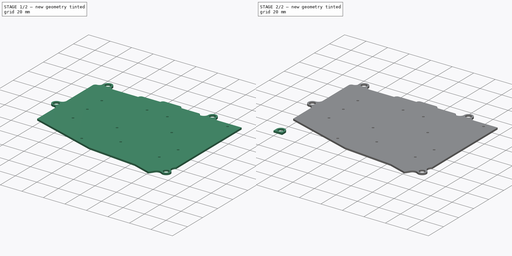
[diagram: build sequence overview — one tinted view per stage of 2, left to right]
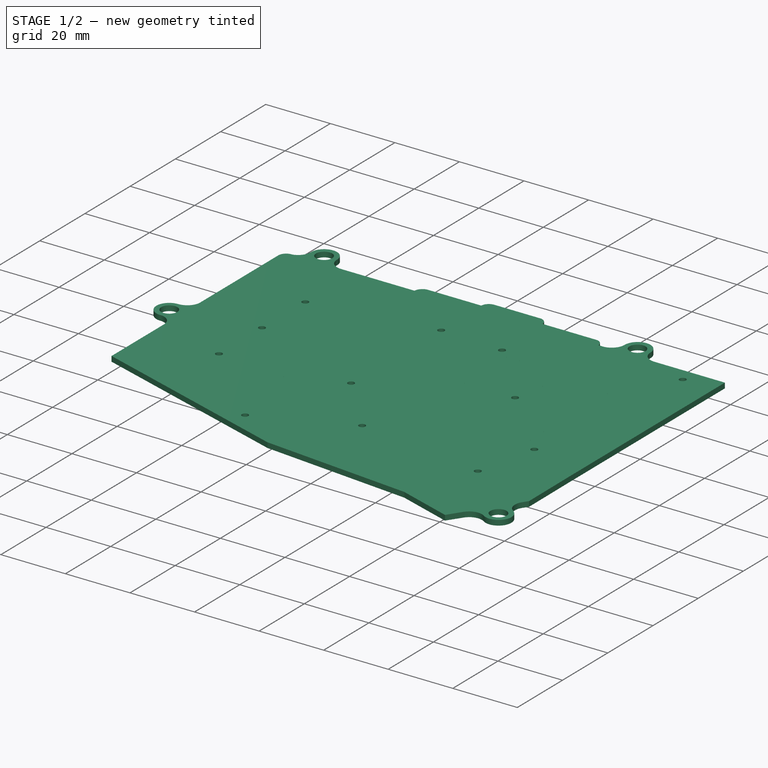
[diagram: stage 1 of 2 — iso view after this stage's code; geometry added in this stage tinted green]
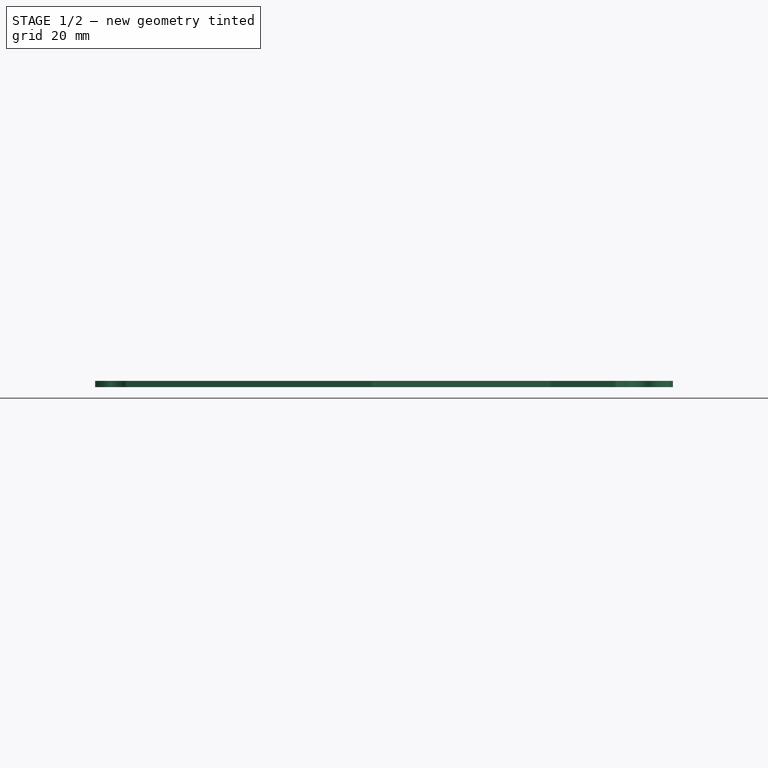
[diagram: stage 1 of 2 — front view after this stage's code; geometry added in this stage tinted green]
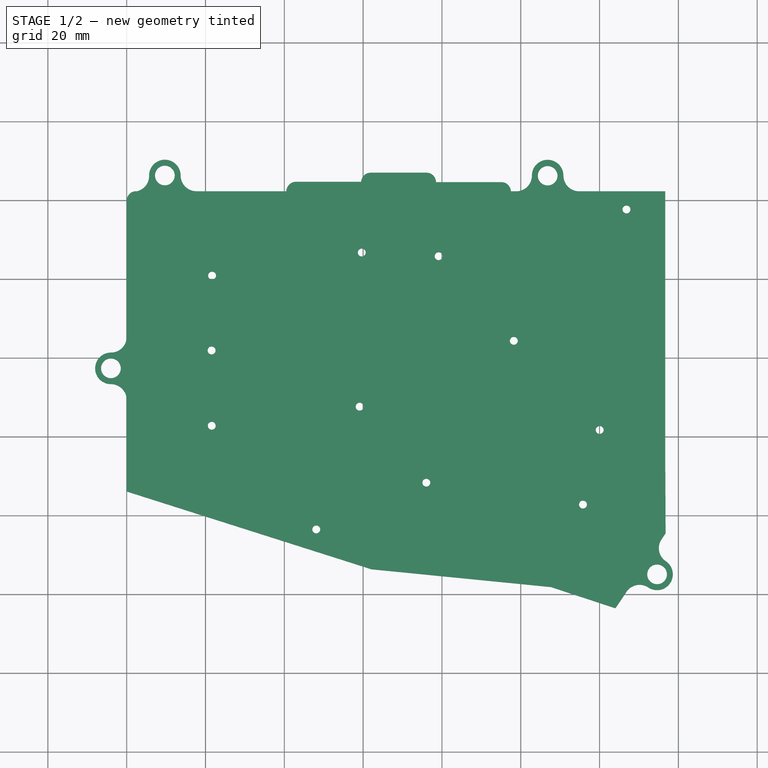
[diagram: stage 1 of 2 — top view after this stage's code; geometry added in this stage tinted green]
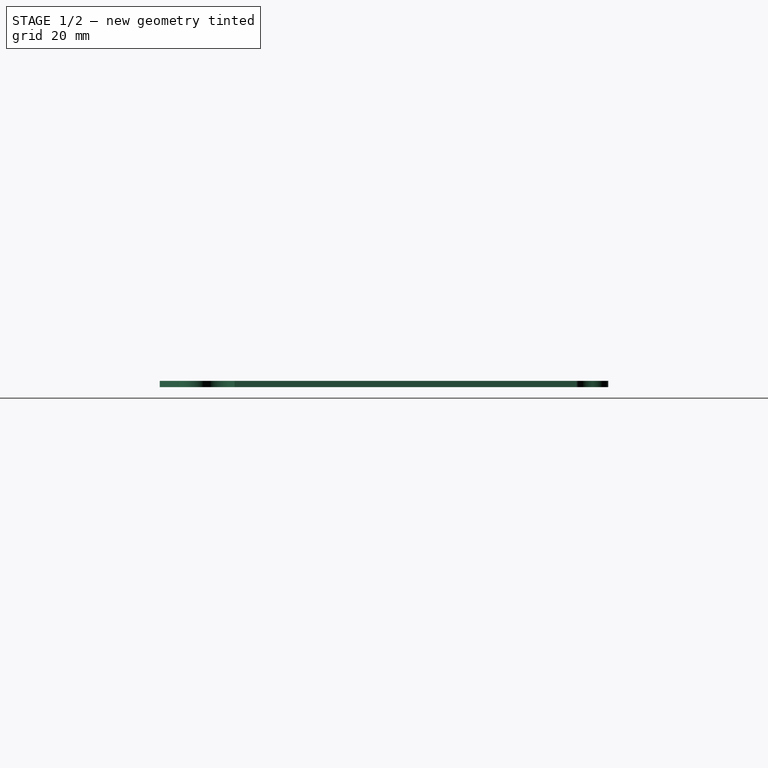
[diagram: stage 1 of 2 — right view after this stage's code; geometry added in this stage tinted green]
FCSTD DOCUMENT  (FreeCAD 0.20R29177 +426 (Git))
Label: case
License: All rights reserved
LicenseURL: http://en.wikipedia.org/wiki/All_rights_reserved
objects: Sketcher::SketchObject×3, PartDesign::Pad×3, PartDesign::Body×3, Part::Part2DObjectPython×2, Part::Feature×1
note: 15 computed .brp shape members not serialized (recipe doc carries the construction recipe); baked Part::Feature solids carry a one-line shape summary decoded from their .brp

FEATURE [Sketcher::SketchObject] Sketch
  FullyConstrained = false
  MapMode = 5
  Support = -> [XY_Plane]
  sketch-geometry (156):
    g0: LineSegment StartX=69.64 StartY=23.71 StartZ=0 EndX=83.64 EndY=23.71 EndZ=0
    g1: LineSegment StartX=83.64 StartY=23.71 StartZ=0 EndX=83.64 EndY=9.71 EndZ=0
    g2: LineSegment StartX=83.64 StartY=9.71 StartZ=0 EndX=69.64 EndY=9.71 EndZ=0
    g3: LineSegment StartX=69.64 StartY=9.71 StartZ=0 EndX=69.64 EndY=23.71 EndZ=0
    g4: LineSegment StartX=24 StartY=83.31 StartZ=0 EndX=24 EndY=97.31 EndZ=0
    g5: LineSegment StartX=24 StartY=97.31 StartZ=0 EndX=38 EndY=97.31 EndZ=0
    g6: LineSegment StartX=38 StartY=97.31 StartZ=0 EndX=38 EndY=83.31 EndZ=0
    g7: LineSegment StartX=38 StartY=83.31 StartZ=0 EndX=24 EndY=83.31 EndZ=0
    g8: LineSegment StartX=100 StartY=99.81 StartZ=0 EndX=114 EndY=99.81 EndZ=0
    g9: LineSegment StartX=114 StartY=99.81 StartZ=0 EndX=114 EndY=85.81 EndZ=0
    g10: LineSegment StartX=114 StartY=85.81 StartZ=0 EndX=100 EndY=85.81 EndZ=0
    g11: LineSegment StartX=100 StartY=85.81 StartZ=0 EndX=100 EndY=99.81 EndZ=0
    g12: LineSegment StartX=43 StartY=102.21 StartZ=0 EndX=57 EndY=102.21 EndZ=0
    g13: LineSegment StartX=57 StartY=102.21 StartZ=0 EndX=57 EndY=88.21 EndZ=0
    g14: LineSegment StartX=57 StartY=88.21 StartZ=0 EndX=43 EndY=88.21 EndZ=0
    g15: LineSegment StartX=43 StartY=88.21 StartZ=0 EndX=43 EndY=102.21 EndZ=0
    g16: LineSegment StartX=62 StartY=104.61 StartZ=0 EndX=76 EndY=104.61 EndZ=0
    g17: LineSegment StartX=76 StartY=104.61 StartZ=0 EndX=76 EndY=90.61 EndZ=0
    g18: LineSegment StartX=76 StartY=90.61 StartZ=0 EndX=62 EndY=90.61 EndZ=0
    g19: LineSegment StartX=62 StartY=90.61 StartZ=0 EndX=62 EndY=104.61 EndZ=0
    g20: LineSegment StartX=88.94 StartY=8.66 StartZ=0 EndX=102.463 EndY=5.03653 EndZ=0
    g21: LineSegment StartX=102.463 StartY=5.03653 StartZ=0 EndX=106.086 EndY=18.5595 EndZ=0
    g22: LineSegment StartX=106.086 StartY=18.5595 StartZ=0 EndX=92.5635 EndY=22.183 EndZ=0
    g23: LineSegment StartX=92.5635 StartY=22.183 StartZ=0 EndX=88.94 EndY=8.66 EndZ=0
    g24: LineSegment StartX=81 StartY=102.21 StartZ=0 EndX=95 EndY=102.21 EndZ=0
    g25: LineSegment StartX=95 StartY=102.21 StartZ=0 EndX=95 EndY=88.21 EndZ=0
    g26: LineSegment StartX=95 StartY=88.21 StartZ=0 EndX=81 EndY=88.21 EndZ=0
    g27: LineSegment StartX=81 StartY=88.21 StartZ=0 EndX=81 EndY=102.21 EndZ=0
    g28: LineSegment StartX=110.763 StartY=7.18653 StartZ=0 EndX=122.887 EndY=0.186533 EndZ=0
    g29: LineSegment StartX=122.887 StartY=0.186533 StartZ=0 EndX=129.887 EndY=12.3109 EndZ=0
    g30: LineSegment StartX=129.887 StartY=12.3109 StartZ=0 EndX=117.763 EndY=19.3109 EndZ=0
    g31: LineSegment StartX=117.763 StartY=19.3109 StartZ=0 EndX=110.763 EndY=7.18653 EndZ=0
    g32: LineSegment StartX=5 StartY=97.31 StartZ=0 EndX=19 EndY=97.31 EndZ=0
    g33: LineSegment StartX=19 StartY=97.31 StartZ=0 EndX=19 EndY=83.31 EndZ=0
    g34: LineSegment StartX=19 StartY=83.31 StartZ=0 EndX=5 EndY=83.31 EndZ=0
    g35: LineSegment StartX=5 StartY=83.31 StartZ=0 EndX=5 EndY=97.31 EndZ=0
    g36: LineSegment StartX=24 StartY=64.31 StartZ=0 EndX=24 EndY=78.31 EndZ=0
    g37: LineSegment StartX=24 StartY=78.31 StartZ=0 EndX=38 EndY=78.31 EndZ=0
    g38: LineSegment StartX=38 StartY=78.31 StartZ=0 EndX=38 EndY=64.31 EndZ=0
    g39: LineSegment StartX=38 StartY=64.31 StartZ=0 EndX=24 EndY=64.31 EndZ=0
    g40: LineSegment StartX=100 StartY=80.71 StartZ=0 EndX=114 EndY=80.71 EndZ=0
    g41: LineSegment StartX=114 StartY=80.71 StartZ=0 EndX=114 EndY=66.71 EndZ=0
    g42: LineSegment StartX=114 StartY=66.71 StartZ=0 EndX=100 EndY=66.71 EndZ=0
    g43: LineSegment StartX=100 StartY=66.71 StartZ=0 EndX=100 EndY=80.71 EndZ=0
    g44: LineSegment StartX=43 StartY=83.11 StartZ=0 EndX=57 EndY=83.11 EndZ=0
    g45: LineSegment StartX=57 StartY=83.11 StartZ=0 EndX=57 EndY=69.11 EndZ=0
    g46: LineSegment StartX=57 StartY=69.11 StartZ=0 EndX=43 EndY=69.11 EndZ=0
    g47: LineSegment StartX=43 StartY=69.11 StartZ=0 EndX=43 EndY=83.11 EndZ=0
    g48: LineSegment StartX=62 StartY=85.51 StartZ=0 EndX=76 EndY=85.51 EndZ=0
    g49: LineSegment StartX=76 StartY=85.51 StartZ=0 EndX=76 EndY=71.51 EndZ=0
    g50: LineSegment StartX=76 StartY=71.51 StartZ=0 EndX=62 EndY=71.51 EndZ=0
    g51: LineSegment StartX=62 StartY=71.51 StartZ=0 EndX=62 EndY=85.51 EndZ=0
    g52: LineSegment StartX=81 StartY=83.11 StartZ=0 EndX=95 EndY=83.11 EndZ=0
    g53: LineSegment StartX=95 StartY=83.11 StartZ=0 EndX=95 EndY=69.11 EndZ=0
    g54: LineSegment StartX=95 StartY=69.11 StartZ=0 EndX=81 EndY=69.11 EndZ=0
    g55: LineSegment StartX=81 StartY=69.11 StartZ=0 EndX=81 EndY=83.11 EndZ=0
    g56: LineSegment StartX=5 StartY=78.31 StartZ=0 EndX=19 EndY=78.31 EndZ=0
    g57: LineSegment StartX=19 StartY=78.31 StartZ=0 EndX=19 EndY=64.31 EndZ=0
    g58: LineSegment StartX=19 StartY=64.31 StartZ=0 EndX=5 EndY=64.31 EndZ=0
    g59: LineSegment StartX=5 StartY=64.31 StartZ=0 EndX=5 EndY=78.31 EndZ=0
    g60: LineSegment StartX=24 StartY=45.31 StartZ=0 EndX=24 EndY=59.31 EndZ=0
    g61: LineSegment StartX=24 StartY=59.31 StartZ=0 EndX=38 EndY=59.31 EndZ=0
    g62: LineSegment StartX=38 StartY=59.31 StartZ=0 EndX=38 EndY=45.31 EndZ=0
    g63: LineSegment StartX=38 StartY=45.31 StartZ=0 EndX=24 EndY=45.31 EndZ=0
    g64: LineSegment StartX=100 StartY=61.71 StartZ=0 EndX=114 EndY=61.71 EndZ=0
    g65: LineSegment StartX=114 StartY=61.71 StartZ=0 EndX=114 EndY=47.71 EndZ=0
    g66: LineSegment StartX=114 StartY=47.71 StartZ=0 EndX=100 EndY=47.71 EndZ=0
    g67: LineSegment StartX=100 StartY=47.71 StartZ=0 EndX=100 EndY=61.71 EndZ=0
    g68: LineSegment StartX=43 StartY=64.11 StartZ=0 EndX=57 EndY=64.11 EndZ=0
    g69: LineSegment StartX=57 StartY=64.11 StartZ=0 EndX=57 EndY=50.11 EndZ=0
    g70: LineSegment StartX=57 StartY=50.11 StartZ=0 EndX=43 EndY=50.11 EndZ=0
    g71: LineSegment StartX=43 StartY=50.11 StartZ=0 EndX=43 EndY=64.11 EndZ=0
    g72: LineSegment StartX=62 StartY=66.51 StartZ=0 EndX=76 EndY=66.51 EndZ=0
    g73: LineSegment StartX=76 StartY=66.51 StartZ=0 EndX=76 EndY=52.51 EndZ=0
    g74: LineSegment StartX=76 StartY=52.51 StartZ=0 EndX=62 EndY=52.51 EndZ=0
    g75: LineSegment StartX=62 StartY=52.51 StartZ=0 EndX=62 EndY=66.51 EndZ=0
    g76: LineSegment StartX=81 StartY=64.11 StartZ=0 EndX=95 EndY=64.11 EndZ=0
    g77: LineSegment StartX=95 StartY=64.11 StartZ=0 EndX=95 EndY=50.11 EndZ=0
    g78: LineSegment StartX=95 StartY=50.11 StartZ=0 EndX=81 EndY=50.11 EndZ=0
    g79: LineSegment StartX=81 StartY=50.11 StartZ=0 EndX=81 EndY=64.11 EndZ=0
    g80: LineSegment StartX=5 StartY=59.31 StartZ=0 EndX=19 EndY=59.31 EndZ=0
    g81: LineSegment StartX=19 StartY=59.31 StartZ=0 EndX=19 EndY=45.31 EndZ=0
    g82: LineSegment StartX=19 StartY=45.31 StartZ=0 EndX=5 EndY=45.31 EndZ=0
    g83: LineSegment StartX=5 StartY=45.31 StartZ=0 EndX=5 EndY=59.31 EndZ=0
    g84: LineSegment StartX=24 StartY=26.31 StartZ=0 EndX=24 EndY=40.31 EndZ=0
    g85: LineSegment StartX=24 StartY=40.31 StartZ=0 EndX=38 EndY=40.31 EndZ=0
    g86: LineSegment StartX=38 StartY=40.31 StartZ=0 EndX=38 EndY=26.31 EndZ=0
    g87: LineSegment StartX=38 StartY=26.31 StartZ=0 EndX=24 EndY=26.31 EndZ=0
    g88: LineSegment StartX=100 StartY=42.71 StartZ=0 EndX=114 EndY=42.71 EndZ=0
    g89: LineSegment StartX=114 StartY=42.71 StartZ=0 EndX=114 EndY=28.71 EndZ=0
    g90: LineSegment StartX=114 StartY=28.71 StartZ=0 EndX=100 EndY=28.71 EndZ=0
    g91: LineSegment StartX=100 StartY=28.71 StartZ=0 EndX=100 EndY=42.71 EndZ=0
    g92: LineSegment StartX=43 StartY=45.11 StartZ=0 EndX=57 EndY=45.11 EndZ=0
    g93: LineSegment StartX=57 StartY=45.11 StartZ=0 EndX=57 EndY=31.11 EndZ=0
    g94: LineSegment StartX=57 StartY=31.11 StartZ=0 EndX=43 EndY=31.11 EndZ=0
    g95: LineSegment StartX=43 StartY=31.11 StartZ=0 EndX=43 EndY=45.11 EndZ=0
    g96: LineSegment StartX=62 StartY=47.51 StartZ=0 EndX=76 EndY=47.51 EndZ=0
    g97: LineSegment StartX=76 StartY=47.51 StartZ=0 EndX=76 EndY=33.51 EndZ=0
    g98: LineSegment StartX=76 StartY=33.51 StartZ=0 EndX=62 EndY=33.51 EndZ=0
    g99: LineSegment StartX=62 StartY=33.51 StartZ=0 EndX=62 EndY=47.51 EndZ=0
    g100: LineSegment StartX=81 StartY=45.11 StartZ=0 EndX=95 EndY=45.11 EndZ=0
    g101: LineSegment StartX=95 StartY=45.11 StartZ=0 EndX=95 EndY=31.11 EndZ=0
    g102: LineSegment StartX=95 StartY=31.11 StartZ=0 EndX=81 EndY=31.11 EndZ=0
    g103: LineSegment StartX=81 StartY=31.11 StartZ=0 EndX=81 EndY=45.11 EndZ=0
    g104: LineSegment StartX=5 StartY=40.31 StartZ=0 EndX=19 EndY=40.31 EndZ=0
    g105: LineSegment StartX=19 StartY=40.31 StartZ=0 EndX=19 EndY=26.31 EndZ=0
    g106: LineSegment StartX=19 StartY=26.31 StartZ=0 EndX=5 EndY=26.31 EndZ=0
    g107: LineSegment StartX=5 StartY=26.31 StartZ=0 EndX=5 EndY=40.31 EndZ=0
    g108: LineSegment StartX=116 StartY=102.21 StartZ=0 EndX=116 EndY=33.55 EndZ=0
    g109: LineSegment StartX=116 StartY=33.55 StartZ=0 EndX=136.741 EndY=21.5802 EndZ=0
    g110: ArcOfCircle CenterX=42.998 CenterY=102.21 CenterZ=0 NormalX=0 NormalY=0 NormalZ=1 AngleXU=0 Radius=2.5 StartAngle=1.57 EndAngle=3.10158
    g111: ArcOfCircle CenterX=2.4 CenterY=99.91 CenterZ=0 NormalX=0 NormalY=0 NormalZ=1 AngleXU=0 Radius=2.4 StartAngle=1.5708 EndAngle=3.14159
    g112: LineSegment StartX=43 StartY=104.71 StartZ=0 EndX=59.5 EndY=104.71 EndZ=0
    g113: ArcOfCircle CenterX=61.8979 CenterY=104.61 CenterZ=0 NormalX=0 NormalY=0 NormalZ=1 AngleXU=0 Radius=2.4 StartAngle=1.5708 EndAngle=3.09991
    g114: LineSegment StartX=61.8979 StartY=107.01 StartZ=0 EndX=76.1 EndY=107.01 EndZ=0
    g115: ArcOfCircle CenterX=76.1 CenterY=104.61 CenterZ=0 NormalX=0 NormalY=0 NormalZ=1 AngleXU=0 Radius=2.4 StartAngle=4e-16 EndAngle=1.5708
    g116: LineSegment StartX=78.5 StartY=104.61 StartZ=0 EndX=95.1 EndY=104.61 EndZ=0
    g117: ArcOfCircle CenterX=95.1 CenterY=102.21 CenterZ=0 NormalX=0 NormalY=0 NormalZ=1 AngleXU=0 Radius=2.4 StartAngle=0 EndAngle=1.5708
    g118: LineSegment StartX=0 StartY=26.11 StartZ=0 EndX=62.14 EndY=6.36 EndZ=0
    g119: LineSegment StartX=62.14 StartY=6.36 StartZ=0 EndX=107.65 EndY=1.85 EndZ=0
    g120: LineSegment StartX=136.762 StartY=15.4981 StartZ=0 EndX=136.741 EndY=21.5802 EndZ=0
    g121: Circle CenterX=21.6769 CenterY=80.8947 CenterZ=0 NormalX=0 NormalY=0 NormalZ=1 AngleXU=0 Radius=1
    g122: Circle CenterX=21.5467 CenterY=61.8994 CenterZ=0 NormalX=0 NormalY=0 NormalZ=1 AngleXU=0 Radius=1
    g123: Circle CenterX=21.5877 CenterY=42.7891 CenterZ=0 NormalX=0 NormalY=0 NormalZ=1 AngleXU=0 Radius=1
    g124: Circle CenterX=59.1273 CenterY=47.6323 CenterZ=0 NormalX=0 NormalY=0 NormalZ=1 AngleXU=0 Radius=1
    g125: Circle CenterX=48.1132 CenterY=16.4695 CenterZ=0 NormalX=0 NormalY=0 NormalZ=1 AngleXU=0 Radius=1
    g126: Circle CenterX=76.0519 CenterY=28.3453 CenterZ=0 NormalX=0 NormalY=0 NormalZ=1 AngleXU=0 Radius=1
    g127: Circle CenterX=59.6586 CenterY=86.7615 CenterZ=0 NormalX=0 NormalY=0 NormalZ=1 AngleXU=0 Radius=1
    g128: Circle CenterX=79.1635 CenterY=85.8173 CenterZ=0 NormalX=0 NormalY=0 NormalZ=1 AngleXU=0 Radius=1
    g129: Circle CenterX=98.2457 CenterY=64.3391 CenterZ=0 NormalX=0 NormalY=0 NormalZ=1 AngleXU=0 Radius=1
    g130: Circle CenterX=115.792 CenterY=22.785 CenterZ=0 NormalX=0 NormalY=0 NormalZ=1 AngleXU=0 Radius=1
    g131: LineSegment StartX=97.5 StartY=102.21 StartZ=0 EndX=98.8324 EndY=102.21 EndZ=0
    g132: LineSegment StartX=114.832 StartY=102.21 StartZ=0 EndX=116 EndY=102.21 EndZ=0
    g133: Circle CenterX=106.832 CenterY=106.21 CenterZ=0 NormalX=0 NormalY=0 NormalZ=1 AngleXU=0 Radius=2.5
    g134: ArcOfCircle CenterX=106.832 CenterY=106.21 CenterZ=0 NormalX=0 NormalY=0 NormalZ=1 AngleXU=0 Radius=4 StartAngle=0 EndAngle=3.14159
    g135: ArcOfCircle CenterX=98.8324 CenterY=106.21 CenterZ=0 NormalX=0 NormalY=0 NormalZ=1 AngleXU=0 Radius=4 StartAngle=4.71239 EndAngle=6.28319
    g136: ArcOfCircle CenterX=114.832 CenterY=106.21 CenterZ=0 NormalX=0 NormalY=0 NormalZ=1 AngleXU=0 Radius=4 StartAngle=3.14159 EndAngle=4.71239
    g137: Circle CenterX=9.6909 CenterY=106.31 CenterZ=0 NormalX=0 NormalY=0 NormalZ=1 AngleXU=0 Radius=2.5
    g138: ArcOfCircle CenterX=9.6909 CenterY=106.31 CenterZ=0 NormalX=0 NormalY=0 NormalZ=1 AngleXU=0 Radius=4 StartAngle=1.2e-15 EndAngle=3.14159
    g139: ArcOfCircle CenterX=1.69254 CenterY=106.195 CenterZ=0 NormalX=0 NormalY=0 NormalZ=1 AngleXU=0 Radius=4 StartAngle=4.95242 EndAngle=6.31186
    g140: ArcOfCircle CenterX=17.6909 CenterY=106.309 CenterZ=0 NormalX=0 NormalY=0 NormalZ=1 AngleXU=0 Radius=4 StartAngle=3.14143 EndAngle=4.69435
    g141: LineSegment StartX=2.4 StartY=102.31 StartZ=0 EndX=2.64348 EndY=102.31 EndZ=0
    g142: LineSegment StartX=17.6187 StartY=102.31 StartZ=0 EndX=40.5 EndY=102.31 EndZ=0
    g143: Circle CenterX=-4 CenterY=57.3593 CenterZ=0 NormalX=0 NormalY=0 NormalZ=1 AngleXU=0 Radius=2.5
    g144: ArcOfCircle CenterX=-4 CenterY=57.3593 CenterZ=0 NormalX=0 NormalY=0 NormalZ=1 AngleXU=0 Radius=4 StartAngle=1.5708 EndAngle=4.71239
    g145: ArcOfCircle CenterX=-4 CenterY=49.3593 CenterZ=0 NormalX=0 NormalY=0 NormalZ=1 AngleXU=0 Radius=4 StartAngle=0 EndAngle=1.5708
    g146: ArcOfCircle CenterX=-4 CenterY=65.3593 CenterZ=0 NormalX=0 NormalY=0 NormalZ=1 AngleXU=0 Radius=4 StartAngle=4.71239 EndAngle=6.28319
    g147: LineSegment StartX=0 StartY=65.3593 StartZ=0 EndX=0 EndY=99.91 EndZ=0
    g148: LineSegment StartX=0 StartY=26.11 StartZ=0 EndX=0 EndY=49.3593 EndZ=0
    g149: LineSegment StartX=107.65 StartY=1.85 StartZ=0 EndX=124.04 EndY=-3.53 EndZ=0
    g150: Circle CenterX=134.601 CenterY=5.07198 CenterZ=0 NormalX=0 NormalY=0 NormalZ=1 AngleXU=0 Radius=2.5
    g151: ArcOfCircle CenterX=134.601 CenterY=5.07198 CenterZ=0 NormalX=0 NormalY=0 NormalZ=1 AngleXU=0 Radius=4 StartAngle=4.12376 EndAngle=7.26451
    g152: ArcOfCircle CenterX=139.048 CenterY=11.7219 CenterZ=0 NormalX=0 NormalY=0 NormalZ=1 AngleXU=0 Radius=4 StartAngle=2.55212 EndAngle=4.12292
    g153: ArcOfCircle CenterX=130.156 CenterY=-1.57977 CenterZ=0 NormalX=0 NormalY=0 NormalZ=1 AngleXU=0 Radius=4 StartAngle=0.981328 EndAngle=2.55212
    g154: LineSegment StartX=136.762 StartY=15.4981 StartZ=0 EndX=135.723 EndY=13.9456 EndZ=0
    g155: LineSegment StartX=126.831 StartY=0.643912 StartZ=0 EndX=124.04 EndY=-3.53 EndZ=0
  constraints (441):
    c: Coincident(g132,g108)
    c: Horizontal(g0)
    c: Coincident(g0,g1)
    c: Vertical(g1)
    c: Coincident(g1,g2)
    c: Horizontal(g2)
    c: Coincident(g2,g3)
    c: Vertical(g3)
    c: Coincident(g3,g0)
    c: Vertical(g4)
    c: Coincident(g4,g5)
    c: Horizontal(g5)
    c: Coincident(g5,g6)
    c: Vertical(g6)
    c: Coincident(g6,g7)
    c: Horizontal(g7)
    c: Coincident(g7,g4)
    c: Horizontal(g8)
    c: Coincident(g8,g9)
    c: Vertical(g9)
    c: Coincident(g9,g10)
    c: Horizontal(g10)
    c: Coincident(g10,g11)
    c: Vertical(g11)
    c: Coincident(g11,g8)
    c: Horizontal(g12)
    c: Coincident(g12,g13)
    c: Vertical(g13)
    c: Coincident(g13,g14)
    c: Horizontal(g14)
    c: Coincident(g14,g15)
    c: Vertical(g15)
    c: Coincident(g15,g12)
    c: Horizontal(g16)
    c: Coincident(g16,g17)
    c: Vertical(g17)
    c: Coincident(g17,g18)
    c: Horizontal(g18)
    c: Coincident(g18,g19)
    c: Vertical(g19)
    c: Coincident(g19,g16)
    c: Coincident(g20,g21)
    c: Coincident(g21,g22)
    c: Coincident(g22,g23)
    c: Coincident(g23,g20)
    c: Horizontal(g24)
    c: Coincident(g24,g25)
    c: Vertical(g25)
    c: Coincident(g25,g26)
    c: Horizontal(g26)
    c: Coincident(g26,g27)
    c: Vertical(g27)
    c: Coincident(g27,g24)
    c: Coincident(g28,g29)
    c: Coincident(g29,g30)
    c: Coincident(g30,g31)
    c: Coincident(g31,g28)
    c: Horizontal(g32)
    c: Coincident(g32,g33)
    c: Vertical(g33)
    c: Coincident(g33,g34)
    c: Horizontal(g34)
    c: Coincident(g34,g35)
    c: Vertical(g35)
    c: Coincident(g35,g32)
    c: DistanceY(g35,g35) = 14
    c: DistanceX(g32,g32) = 14
    c: DistanceX(g34,g4) = 19
    c: DistanceY(g32,g4) = 0
    c: DistanceX(g5,g5) = 14
    c: DistanceY(g4,g4) = 14
    c: DistanceY(g5,g12) = 4.9
    c: DistanceX(g6,g13) = 19
    c: DistanceY(g15,g15) = 14
    c: DistanceY(g12,g16) = 2.4
    c: DistanceX(g13,g17) = 19
    c: DistanceY(g19,g19) = 14
    c: DistanceY(g24,g16) = 2.4
    c: DistanceX(g17,g25) = 19
    c: DistanceY(g27,g27) = 14
    c: DistanceX(g12,g12) = 14
    c: DistanceX(g16,g16) = 14
    c: DistanceX(g24,g24) = 14
    c: DistanceY(g8,g24) = 2.4
    c: DistanceX(g25,g9) = 19
    c: DistanceY(g11,g11) = 14
    c: DistanceX(g8,g8) = 14
    c: Vertical(g36)
    c: Coincident(g36,g37)
    c: Horizontal(g37)
    c: Coincident(g37,g38)
    c: Vertical(g38)
    c: Coincident(g38,g39)
    c: Horizontal(g39)
    c: Coincident(g39,g36)
    c: Horizontal(g40)
    c: Coincident(g40,g41)
    c: Vertical(g41)
    c: Coincident(g41,g42)
    c: Horizontal(g42)
    c: Coincident(g42,g43)
    c: Vertical(g43)
    c: Coincident(g43,g40)
    c: Horizontal(g44)
    c: Coincident(g44,g45)
    c: Vertical(g45)
    c: Coincident(g45,g46)
    c: Horizontal(g46)
    c: Coincident(g46,g47)
    c: Vertical(g47)
    c: Coincident(g47,g44)
    c: Horizontal(g48)
    c: Coincident(g48,g49)
    c: Vertical(g49)
    c: Coincident(g49,g50)
    c: Horizontal(g50)
    c: Coincident(g50,g51)
    c: Vertical(g51)
    c: Coincident(g51,g48)
    c: Horizontal(g52)
    c: Coincident(g52,g53)
    c: Vertical(g53)
    c: Coincident(g53,g54)
    c: Horizontal(g54)
    c: Coincident(g54,g55)
    c: Vertical(g55)
    c: Coincident(g55,g52)
    c: Horizontal(g56)
    c: Coincident(g56,g57)
    c: Vertical(g57)
    c: Coincident(g57,g58)
    c: Horizontal(g58)
    c: Coincident(g58,g59)
    c: Vertical(g59)
    c: Coincident(g59,g56)
    c: DistanceY(g59,g59) = 14
    c: DistanceX(g56,g56) = 14
    c: DistanceX(g58,g36) = 19
    c: DistanceY(g56,g36) = 0
    c: DistanceX(g37,g37) = 14
    c: DistanceY(g36,g36) = 14
    c: DistanceY(g37,g44) = 4.8
    c: DistanceX(g38,g45) = 19
    c: DistanceY(g47,g47) = 14
    c: DistanceY(g44,g48) = 2.4
    c: DistanceX(g45,g49) = 19
    c: DistanceY(g51,g51) = 14
    c: DistanceY(g52,g48) = 2.4
    c: DistanceX(g49,g53) = 19
    c: DistanceY(g55,g55) = 14
    c: DistanceX(g44,g44) = 14
    c: DistanceX(g48,g48) = 14
    c: DistanceX(g52,g52) = 14
    c: DistanceY(g40,g52) = 2.4
    c: DistanceX(g53,g41) = 19
    c: DistanceY(g43,g43) = 14
    c: DistanceX(g40,g40) = 14
    c: Vertical(g60)
    c: Coincident(g60,g61)
    c: Horizontal(g61)
    c: Coincident(g61,g62)
    c: Vertical(g62)
    c: Coincident(g62,g63)
    c: Horizontal(g63)
    c: Coincident(g63,g60)
    c: Horizontal(g64)
    c: Coincident(g64,g65)
    c: Vertical(g65)
    c: Coincident(g65,g66)
    c: Horizontal(g66)
    c: Coincident(g66,g67)
    c: Vertical(g67)
    c: Coincident(g67,g64)
    c: Horizontal(g68)
    c: Coincident(g68,g69)
    c: Vertical(g69)
    c: Coincident(g69,g70)
    c: Horizontal(g70)
    c: Coincident(g70,g71)
    c: Vertical(g71)
    c: Coincident(g71,g68)
    c: Horizontal(g72)
    c: Coincident(g72,g73)
    c: Vertical(g73)
    c: Coincident(g73,g74)
    c: Horizontal(g74)
    c: Coincident(g74,g75)
    c: Vertical(g75)
    c: Coincident(g75,g72)
    c: Horizontal(g76)
    c: Coincident(g76,g77)
    c: Vertical(g77)
    c: Coincident(g77,g78)
    c: Horizontal(g78)
    c: Coincident(g78,g79)
    c: Vertical(g79)
    c: Coincident(g79,g76)
    c: Horizontal(g80)
    c: Coincident(g80,g81)
    c: Vertical(g81)
    c: Coincident(g81,g82)
    c: Horizontal(g82)
    c: Coincident(g82,g83)
    c: Vertical(g83)
    c: Coincident(g83,g80)
    c: DistanceY(g83,g83) = 14
    c: DistanceX(g80,g80) = 14
    c: DistanceX(g82,g60) = 19
    c: DistanceY(g80,g60) = 0
    c: DistanceX(g61,g61) = 14
    c: DistanceY(g60,g60) = 14
    c: DistanceY(g61,g68) = 4.8
    c: DistanceX(g62,g69) = 19
    c: DistanceY(g71,g71) = 14
    c: DistanceY(g68,g72) = 2.4
    c: DistanceX(g69,g73) = 19
    c: DistanceY(g75,g75) = 14
    c: DistanceY(g76,g72) = 2.4
    c: DistanceX(g73,g77) = 19
    c: DistanceY(g79,g79) = 14
    c: DistanceX(g68,g68) = 14
    c: DistanceX(g72,g72) = 14
    c: DistanceX(g76,g76) = 14
    c: DistanceY(g64,g76) = 2.4
    c: DistanceX(g77,g65) = 19
    c: DistanceY(g67,g67) = 14
    c: DistanceX(g64,g64) = 14
    c: Vertical(g84)
    c: Coincident(g84,g85)
    c: Horizontal(g85)
    c: Coincident(g85,g86)
    c: Vertical(g86)
    c: Coincident(g86,g87)
    c: Horizontal(g87)
    c: Coincident(g87,g84)
    c: Horizontal(g88)
    c: Coincident(g88,g89)
    c: Vertical(g89)
    c: Coincident(g89,g90)
    c: Horizontal(g90)
    c: Coincident(g90,g91)
    c: Vertical(g91)
    c: Coincident(g91,g88)
    c: Horizontal(g92)
    c: Coincident(g92,g93)
    c: Vertical(g93)
    c: Coincident(g93,g94)
    c: Horizontal(g94)
    c: Coincident(g94,g95)
    c: Vertical(g95)
    c: Coincident(g95,g92)
    c: Horizontal(g96)
    c: Coincident(g96,g97)
    c: Vertical(g97)
    c: Coincident(g97,g98)
    c: Horizontal(g98)
    c: Coincident(g98,g99)
    c: Vertical(g99)
    c: Coincident(g99,g96)
    c: Horizontal(g100)
    c: Coincident(g100,g101)
    c: Vertical(g101)
    c: Coincident(g101,g102)
    c: Horizontal(g102)
    c: Coincident(g102,g103)
    c: Vertical(g103)
    c: Coincident(g103,g100)
    c: Horizontal(g104)
    c: Coincident(g104,g105)
    c: Vertical(g105)
    c: Coincident(g105,g106)
    c: Horizontal(g106)
    c: Coincident(g106,g107)
    c: Vertical(g107)
    c: Coincident(g107,g104)
    c: DistanceY(g107,g107) = 14
    c: DistanceX(g104,g104) = 14
    c: DistanceX(g106,g84) = 19
    c: DistanceY(g104,g84) = 0
    c: DistanceX(g85,g85) = 14
    c: DistanceY(g84,g84) = 14
    c: DistanceY(g85,g92) = 4.8
    c: DistanceX(g86,g93) = 19
    c: DistanceY(g95,g95) = 14
    c: DistanceY(g92,g96) = 2.4
    c: DistanceX(g93,g97) = 19
    c: DistanceY(g99,g99) = 14
    c: DistanceY(g100,g96) = 2.4
    c: DistanceX(g97,g101) = 19
    c: DistanceY(g103,g103) = 14
    c: DistanceX(g92,g92) = 14
    c: DistanceX(g96,g96) = 14
    c: DistanceX(g100,g100) = 14
    c: DistanceY(g88,g100) = 2.4
    c: DistanceX(g101,g89) = 19
    c: DistanceY(g91,g91) = 14
    c: DistanceX(g88,g88) = 14
    c: DistanceY(g56,g32) = 19
    c: DistanceY(g80,g56) = 19
    c: DistanceX(g56,g34) = 0
    c: DistanceX(g58,g80) = 0
    c: DistanceX(g82,g104) = 0
    c: DistanceY(g104,g80) = 19
    c: DistanceX(g8,g132) = 2
    c: DistanceX(g0,g0) = 14
    c: DistanceY(g3,g3) = 14
    c: Angle(g23,g1) = 0.261799
    c: Distance(g22) = 14
    c: Distance(g23) = 14
    c: Distance(g20) = 14
    c: Distance(g21) = 14
    c: Distance(g30) = 14
    c: Distance(g31) = 14
    c: Distance(g29) = 14
    c: Distance(g28) = 14
    c: Angle(g31,g1) = 0.523599
    c: Vertical(g108)
    c: Coincident(g109,g108)
    c: DistanceX(g142,g12) = 2.5
    c: Coincident(g110,g112)
    c: Coincident(g110,g142)
    c: Radius(g110) = 2.5
    c: DistanceX(g112,g12) = 0
    c: Tangent(g147,g111) = 1.5708
    c: Tangent(g141,g111) = 1.5708
    c: Radius(g111) = 2.4
    c: DistanceX(g147,g32) = 5
    c: DistanceY(g32,g141) = 5
    c: Horizontal(g112)
    c: Distance(g12,g112) = 2.5
    c: DistanceX(g142,g112) = 19
    c: Tangent(g114,g113) = 1.5708
    c: Coincident(g112,g113) = 1.5708
    c: DistanceY(g16,g114) = 2.4
    c: Radius(g113) = 2.4
    c: Horizontal(g114)
    c: Tangent(g114,g115) = 1.5708
    c: Coincident(g116,g115) = -1.5708
    c: DistanceX(g112,g116) = 19
    c: DistanceY(g24,g116) = 2.4
    c: Radius(g115) = 2.4
    c: Horizontal(g116)
    c: Tangent(g116,g117) = 1.5708
    c: Coincident(g131,g117)
    c: DistanceX(g115,g131) = 19
    c: Radius(g117) = 2.4
    c: DistanceY(g8,g131) = 2.4
    c: DistanceX(g-2,g111) = 0
    c: DistanceY(g148,g141) = 76.2
    c: Coincident(g118,g148)
    c: Diameter(g121) = 2
    c: Diameter(g122) = 2
    c: Diameter(g123) = 2
    c: Diameter(g124) = 2
    c: Diameter(g125) = 2
    c: Diameter(g126) = 2
    c: Diameter(g127) = 2
    c: Diameter(g128) = 2
    c: Diameter(g129) = 2
    c: Diameter(g130) = 2
    c: Horizontal(g131)
    c: Horizontal(g132)
    c: Diameter(g133) = 5
    c: Radius(g134) = 4
    c: DistanceY(g133,g134) = 0
    c: DistanceY(g133,g134) = 0
    c: Radius(g135) = 4
    c: Coincident(g135,g134)
    c: Coincident(g131,g135)
    c: Coincident(g134,g136)
    c: Coincident(g132,g136)
    c: Radius(g136) = 4
    c: DistanceY(g132,g131) = 0
    c: Coincident(g133,g134)
    c: DistanceY(g131,g134) = 4
    c: DistanceX(g131,g134) = 4
    c: DistanceX(g134,g132) = 4
    c: Diameter(g137) = 5
    c: Radius(g138) = 4
    c: DistanceY(g137,g138) = 0
    c: DistanceY(g137,g138) = 0
    c: Radius(g139) = 4
    c: Coincident(g139,g138)
    c: Coincident(g138,g140)
    c: Radius(g140) = 4
    c: Coincident(g137,g138)
    c: Horizontal(g141)
    c: Horizontal(g142)
    c: Coincident(g141,g139)
    c: Coincident(g140,g142)
    c: DistanceY(g139,g140) = 0
    c: DistanceY(g139,g138) = 4
    c: Diameter(g143) = 5
    c: Radius(g144) = 4
    c: Radius(g145) = 4
    c: Coincident(g145,g144)
    c: Coincident(g144,g146)
    c: Radius(g146) = 4
    c: Coincident(g143,g144)
    c: DistanceX(g143,g144) = 0
    c: DistanceX(g143,g144) = 0
    c: Vertical(g147)
    c: Vertical(g148)
    c: Coincident(g145,g148)
    c: Coincident(g146,g147)
    c: DistanceX(g146,g145) = 0
    c: DistanceX(g144,g145) = 4
    c: DistanceY(g145,g144) = 4
    c: DistanceY(g144,g146) = 4
    c: Coincident(g109,g120)
    c: Coincident(g119,g118)
    c: Coincident(g120,g154)
    c: Coincident(g149,g155)
    c: Coincident(g119,g149)
    c: DistanceX(g98,g0) = 7.64
    c: DistanceY(g0,g98) = 9.8
    c: DistanceX(g1,g20) = 5.3
    c: Perpendicular(g22,g23)
    c: DistanceY(g20,g1) = 1.05
    c: DistanceX(g20,g28) = 8.3
    c: DistanceY(g20,g28) = 2.15
    c: Perpendicular(g31,g30)
    c: Diameter(g150) = 5
    c: Radius(g151) = 4
    c: Radius(g152) = 4
    c: Coincident(g152,g151)
    c: Coincident(g151,g153)
    c: Radius(g153) = 4
    c: Coincident(g150,g151)
    c: Coincident(g153,g155)
    c: Coincident(g152,g154)
    c: DistanceY(g118,g118) = 19.75
    c: DistanceX(g118,g118) = 62.14
    c: DistanceY(g119,g119) = 4.51
    c: DistanceX(g119,g119) = 45.51
    c: DistanceY(g149,g149) = 5.38
    c: DistanceX(g149,g149) = 16.39
    c: DistanceY(g108,g108) = 68.66
    c: DistanceY(g-1,g118) = 26.11
    c: Parallel(g154,g155)
    c: Distance(g150,g154) = 4
FEATURE [PartDesign::Pad] Pad
  Direction = (0,0,1)
  Length = 1.6
  Length2 = 10
  Profile = -> Sketch
  ReferenceAxis = -> Sketch [N_Axis]
  Type = 0
FEATURE [PartDesign::Body] Body003
  Group = -> [Sketch003,Pad003]
  Origin = -> Origin003
  Placement = pos=(-61.4052,-53.0722,0) rot=(0,0,1;0rad)
  Tip = -> Pad003
FEATURE [Part::Feature] Solid  label="shield 1"
  Placement = pos=(-137.597,101.61,-1.6) rot=(0,0,1;0rad)
  shape: bbox 136.7 x 110.6 x 1.6 mm, 274 faces (baked)
FEATURE [Sketcher::SketchObject] Sketch004
  FullyConstrained = false
  MapMode = 5
  Support = -> [XY_Plane005]
  sketch-geometry (50):
    g0: LineSegment StartX=136.676 StartY=102.283 StartZ=0 EndX=136.676 EndY=33.6233 EndZ=0
    g1: LineSegment StartX=136.676 StartY=33.6233 StartZ=0 EndX=136.741 EndY=21.5802 EndZ=0
    g2: ArcOfCircle CenterX=42.9978 CenterY=102.21 CenterZ=0 NormalX=0 NormalY=0 NormalZ=1 AngleXU=0 Radius=2.5 StartAngle=1.56994 EndAngle=3.10159
    g3: ArcOfCircle CenterX=2.4 CenterY=99.91 CenterZ=0 NormalX=0 NormalY=0 NormalZ=1 AngleXU=0 Radius=2.4 StartAngle=1.5708 EndAngle=3.14159
    g4: LineSegment StartX=43 StartY=104.71 StartZ=0 EndX=59.4998 EndY=104.71 EndZ=0
    g5: ArcOfCircle CenterX=61.8978 CenterY=104.61 CenterZ=0 NormalX=0 NormalY=0 NormalZ=1 AngleXU=0 Radius=2.4 StartAngle=1.5708 EndAngle=3.10003
    g6: LineSegment StartX=61.8978 StartY=107.01 StartZ=0 EndX=76.0998 EndY=107.01 EndZ=0
    g7: ArcOfCircle CenterX=76.0998 CenterY=104.61 CenterZ=0 NormalX=0 NormalY=0 NormalZ=1 AngleXU=0 Radius=2.4 StartAngle=0.00215354 EndAngle=1.5708
    g8: LineSegment StartX=78.4998 StartY=104.615 StartZ=0 EndX=95.1008 EndY=104.615 EndZ=0
    g9: ArcOfCircle CenterX=95.1008 CenterY=102.215 CenterZ=0 NormalX=0 NormalY=0 NormalZ=1 AngleXU=0 Radius=2.4 StartAngle=0.0282794 EndAngle=1.5708
    g10: LineSegment StartX=0 StartY=26.11 StartZ=0 EndX=62.14 EndY=6.36 EndZ=0
    g11: LineSegment StartX=62.14 StartY=6.36 StartZ=0 EndX=107.65 EndY=1.85 EndZ=0
    g12: LineSegment StartX=136.762 StartY=15.4981 StartZ=0 EndX=136.741 EndY=21.5802 EndZ=0
    g13: Circle CenterX=21.6769 CenterY=80.8947 CenterZ=0 NormalX=0 NormalY=0 NormalZ=1 AngleXU=0 Radius=1
    g14: Circle CenterX=21.5467 CenterY=61.8994 CenterZ=0 NormalX=0 NormalY=0 NormalZ=1 AngleXU=0 Radius=1
    g15: Circle CenterX=21.5877 CenterY=42.7891 CenterZ=0 NormalX=0 NormalY=0 NormalZ=1 AngleXU=0 Radius=1
    g16: Circle CenterX=59.1273 CenterY=47.6323 CenterZ=0 NormalX=0 NormalY=0 NormalZ=1 AngleXU=0 Radius=1
    g17: Circle CenterX=48.1132 CenterY=16.4695 CenterZ=0 NormalX=0 NormalY=0 NormalZ=1 AngleXU=0 Radius=1
    g18: Circle CenterX=76.0519 CenterY=28.3453 CenterZ=0 NormalX=0 NormalY=0 NormalZ=1 AngleXU=0 Radius=1
    g19: Circle CenterX=59.6586 CenterY=86.7615 CenterZ=0 NormalX=0 NormalY=0 NormalZ=1 AngleXU=0 Radius=1
    g20: Circle CenterX=79.1635 CenterY=85.8173 CenterZ=0 NormalX=0 NormalY=0 NormalZ=1 AngleXU=0 Radius=1
    g21: Circle CenterX=98.2457 CenterY=64.3391 CenterZ=0 NormalX=0 NormalY=0 NormalZ=1 AngleXU=0 Radius=1
    g22: Circle CenterX=115.792 CenterY=22.785 CenterZ=0 NormalX=0 NormalY=0 NormalZ=1 AngleXU=0 Radius=1
    g23: LineSegment StartX=97.4998 StartY=102.283 StartZ=0 EndX=98.8324 EndY=102.283 EndZ=0
    g24: LineSegment StartX=114.832 StartY=102.283 StartZ=0 EndX=136.676 EndY=102.283 EndZ=0
    g25: Circle CenterX=106.832 CenterY=106.283 CenterZ=0 NormalX=0 NormalY=0 NormalZ=1 AngleXU=0 Radius=2.5
    g26: ArcOfCircle CenterX=106.832 CenterY=106.283 CenterZ=0 NormalX=0 NormalY=0 NormalZ=1 AngleXU=0 Radius=4 StartAngle=0 EndAngle=3.14159
    g27: ArcOfCircle CenterX=98.8324 CenterY=106.283 CenterZ=0 NormalX=0 NormalY=0 NormalZ=1 AngleXU=0 Radius=4 StartAngle=4.71239 EndAngle=6.28319
    g28: ArcOfCircle CenterX=114.832 CenterY=106.283 CenterZ=0 NormalX=0 NormalY=0 NormalZ=1 AngleXU=0 Radius=4 StartAngle=3.14159 EndAngle=4.71239
    g29: Circle CenterX=9.6909 CenterY=106.31 CenterZ=0 NormalX=0 NormalY=0 NormalZ=1 AngleXU=0 Radius=2.5
    g30: ArcOfCircle CenterX=9.6909 CenterY=106.31 CenterZ=0 NormalX=0 NormalY=0 NormalZ=1 AngleXU=0 Radius=4 StartAngle=1.2e-15 EndAngle=3.14159
    g31: ArcOfCircle CenterX=1.69254 CenterY=106.195 CenterZ=0 NormalX=0 NormalY=0 NormalZ=1 AngleXU=0 Radius=4 StartAngle=4.95242 EndAngle=6.31186
    g32: ArcOfCircle CenterX=17.6909 CenterY=106.309 CenterZ=0 NormalX=0 NormalY=0 NormalZ=1 AngleXU=0 Radius=4 StartAngle=3.14143 EndAngle=4.69435
    g33: LineSegment StartX=2.4 StartY=102.31 StartZ=0 EndX=2.64348 EndY=102.31 EndZ=0
    g34: LineSegment StartX=17.6187 StartY=102.31 StartZ=0 EndX=40.4998 EndY=102.31 EndZ=0
    g35: Circle CenterX=-4 CenterY=57.3593 CenterZ=0 NormalX=0 NormalY=0 NormalZ=1 AngleXU=0 Radius=2.5
    g36: ArcOfCircle CenterX=-4 CenterY=57.3593 CenterZ=0 NormalX=0 NormalY=0 NormalZ=1 AngleXU=0 Radius=4 StartAngle=1.5708 EndAngle=4.71239
    g37: ArcOfCircle CenterX=-4 CenterY=49.3593 CenterZ=0 NormalX=0 NormalY=0 NormalZ=1 AngleXU=0 Radius=4 StartAngle=0 EndAngle=1.5708
    g38: ArcOfCircle CenterX=-4 CenterY=65.3593 CenterZ=0 NormalX=0 NormalY=0 NormalZ=1 AngleXU=0 Radius=4 StartAngle=4.71239 EndAngle=6.28319
    g39: LineSegment StartX=0 StartY=65.3593 StartZ=0 EndX=0 EndY=99.91 EndZ=0
    g40: LineSegment StartX=0 StartY=26.11 StartZ=0 EndX=0 EndY=49.3593 EndZ=0
    g41: LineSegment StartX=107.65 StartY=1.85 StartZ=0 EndX=124.04 EndY=-3.53 EndZ=0
    g42: Circle CenterX=134.601 CenterY=5.07198 CenterZ=0 NormalX=0 NormalY=0 NormalZ=1 AngleXU=0 Radius=2.5
    g43: ArcOfCircle CenterX=134.601 CenterY=5.07198 CenterZ=0 NormalX=0 NormalY=0 NormalZ=1 AngleXU=0 Radius=4 StartAngle=4.12376 EndAngle=7.26451
    g44: ArcOfCircle CenterX=139.048 CenterY=11.7219 CenterZ=0 NormalX=0 NormalY=0 NormalZ=1 AngleXU=0 Radius=4 StartAngle=2.55212 EndAngle=4.12292
    g45: ArcOfCircle CenterX=130.156 CenterY=-1.57977 CenterZ=0 NormalX=0 NormalY=0 NormalZ=1 AngleXU=0 Radius=4 StartAngle=0.981328 EndAngle=2.55212
    g46: LineSegment StartX=136.762 StartY=15.4981 StartZ=0 EndX=135.723 EndY=13.9456 EndZ=0
    g47: LineSegment StartX=126.831 StartY=0.643912 StartZ=0 EndX=124.04 EndY=-3.53 EndZ=0
    g48: Circle CenterX=120.043 CenterY=41.7175 CenterZ=0 NormalX=0 NormalY=0 NormalZ=1 AngleXU=0 Radius=1
    g49: Circle CenterX=126.832 CenterY=97.6877 CenterZ=0 NormalX=0 NormalY=0 NormalZ=1 AngleXU=0 Radius=1
  constraints (112):
    c: Coincident(g24,g0)
    c: Vertical(g0)
    c: Coincident(g1,g0)
    c: Coincident(g2,g4)
    c: Coincident(g2,g34)
    c: Radius(g2) = 2.5
    c: Tangent(g39,g3) = 1.5708
    c: Tangent(g33,g3) = 1.5708
    c: Radius(g3) = 2.4
    c: Horizontal(g4)
    c: DistanceX(g34,g4) = 19
    c: Tangent(g6,g5) = 1.5708
    c: Coincident(g4,g5) = 1.5708
    c: Radius(g5) = 2.4
    c: Horizontal(g6)
    c: Tangent(g6,g7) = 1.5708
    c: Coincident(g8,g7) = -1.5708
    c: DistanceX(g4,g8) = 19
    c: Radius(g7) = 2.4
    c: Horizontal(g8)
    c: Tangent(g8,g9) = 1.5708
    c: Coincident(g23,g9)
    c: DistanceX(g7,g23) = 19
    c: Radius(g9) = 2.4
    c: DistanceX(g-2,g3) = 0
    c: DistanceY(g40,g33) = 76.2
    c: Coincident(g10,g40)
    c: Diameter(g13) = 2
    c: Diameter(g14) = 2
    c: Diameter(g15) = 2
    c: Diameter(g16) = 2
    c: Diameter(g17) = 2
    c: Diameter(g18) = 2
    c: Diameter(g19) = 2
    c: Diameter(g20) = 2
    c: Diameter(g21) = 2
    c: Diameter(g22) = 2
    c: Horizontal(g23)
    c: Horizontal(g24)
    c: Diameter(g25) = 5
    c: Radius(g26) = 4
    c: DistanceY(g25,g26) = 0
    c: DistanceY(g25,g26) = 0
    c: Radius(g27) = 4
    c: Coincident(g27,g26)
    c: Coincident(g23,g27)
    c: Coincident(g26,g28)
    c: Coincident(g24,g28)
    c: Radius(g28) = 4
    c: DistanceY(g24,g23) = 0
    c: Coincident(g25,g26)
    c: DistanceY(g23,g26) = 4
    c: DistanceX(g23,g26) = 4
    c: DistanceX(g26,g24) = 4
    c: Diameter(g29) = 5
    c: Radius(g30) = 4
    c: DistanceY(g29,g30) = 0
    c: DistanceY(g29,g30) = 0
    c: Radius(g31) = 4
    c: Coincident(g31,g30)
    c: Coincident(g30,g32)
    c: Radius(g32) = 4
    c: Coincident(g29,g30)
    c: Horizontal(g33)
    c: Horizontal(g34)
    c: Coincident(g33,g31)
    c: Coincident(g32,g34)
    c: DistanceY(g31,g32) = 0
    c: DistanceY(g31,g30) = 4
    c: Diameter(g35) = 5
    c: Radius(g36) = 4
    c: Radius(g37) = 4
    c: Coincident(g37,g36)
    c: Coincident(g36,g38)
    c: Radius(g38) = 4
    c: Coincident(g35,g36)
    c: DistanceX(g35,g36) = 0
    c: DistanceX(g35,g36) = 0
    c: Vertical(g39)
    c: Vertical(g40)
    c: Coincident(g37,g40)
    c: Coincident(g38,g39)
    c: DistanceX(g38,g37) = 0
    c: DistanceX(g36,g37) = 4
    c: DistanceY(g37,g36) = 4
    c: DistanceY(g36,g38) = 4
    c: Coincident(g1,g12)
    c: Coincident(g11,g10)
    c: Coincident(g12,g46)
    c: Coincident(g41,g47)
    c: Coincident(g11,g41)
    c: Diameter(g42) = 5
    c: Radius(g43) = 4
    c: Radius(g44) = 4
    c: Coincident(g44,g43)
    c: Coincident(g43,g45)
    c: Radius(g45) = 4
    c: Coincident(g42,g43)
    c: Coincident(g45,g47)
    c: Coincident(g44,g46)
    c: DistanceY(g10,g10) = 19.75
    c: DistanceX(g10,g10) = 62.14
    c: DistanceY(g11,g11) = 4.51
    c: DistanceX(g11,g11) = 45.51
    c: DistanceY(g41,g41) = 5.38
    c: DistanceX(g41,g41) = 16.39
    c: DistanceY(g0,g0) = 68.66
    c: DistanceY(g-1,g10) = 26.11
    c: Parallel(g46,g47)
    c: Distance(g42,g46) = 4
    c: Diameter(g48) = 2
    c: Diameter(g49) = 2
FEATURE [PartDesign::Pad] Pad004
  Direction = (0,0,1)
  Length = 1.6
  Length2 = 10
  Profile = -> Sketch004
  ReferenceAxis = -> Sketch004 [N_Axis]
  Type = 0
FEATURE [PartDesign::Body] Body004
  Group = -> [Sketch004,Pad004]
  Origin = -> Origin004
  Placement = pos=(-61.41,-53.07,-4) rot=(0,0,1;0rad)
  Tip = -> Pad004
FEATURE [Part::Part2DObjectPython] Shape2DView  # Draft 2D object (typed FeaturePython)
  AutoUpdate = true
  Base = -> Body
  Clip = false
  FuseArch = false
  HiddenLines = false
  InPlace = true
  OnlySolids = false
  Projection = (0,0,1)
  ProjectionMode = 0
  SegmentLength = 0.05
  Tessellation = false
  VisibleOnly = false
FEATURE [Part::Part2DObjectPython] Shape2DView001  # Draft 2D object (typed FeaturePython)
  AutoUpdate = true
  Base = -> Body004
  Clip = false
  FuseArch = false
  HiddenLines = false
  InPlace = true
  OnlySolids = false
  Projection = (0,0,1)
  ProjectionMode = 0
  SegmentLength = 0.05
  Tessellation = false
  VisibleOnly = false
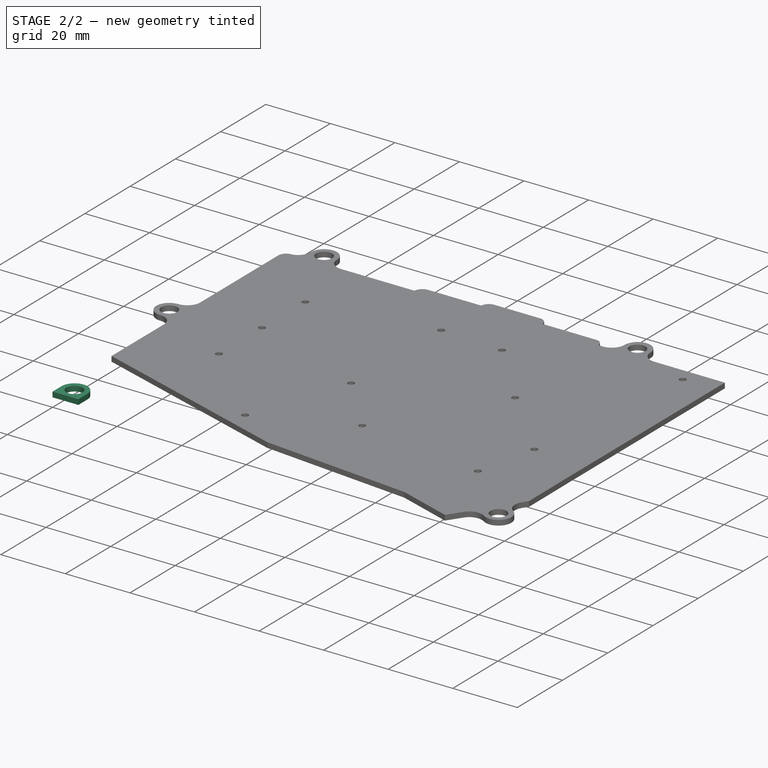
[diagram: stage 2 of 2 — iso view after this stage's code; geometry added in this stage tinted green]
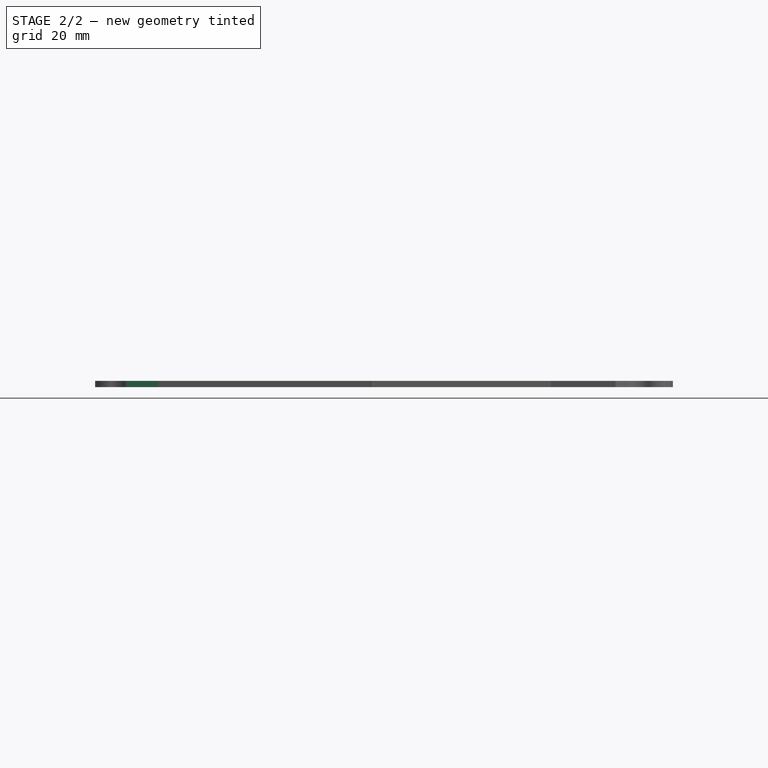
[diagram: stage 2 of 2 — front view after this stage's code; geometry added in this stage tinted green]
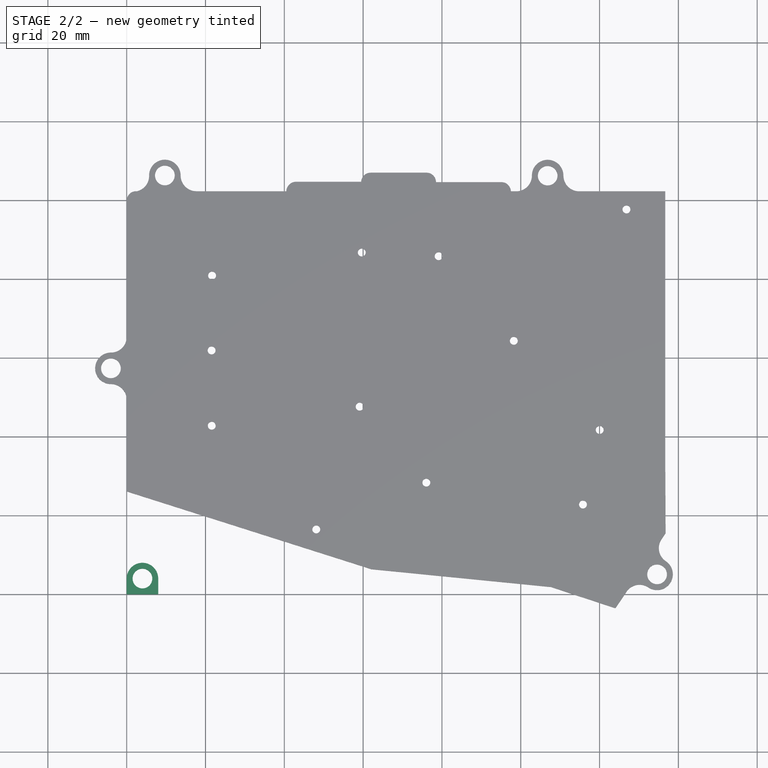
[diagram: stage 2 of 2 — top view after this stage's code; geometry added in this stage tinted green]
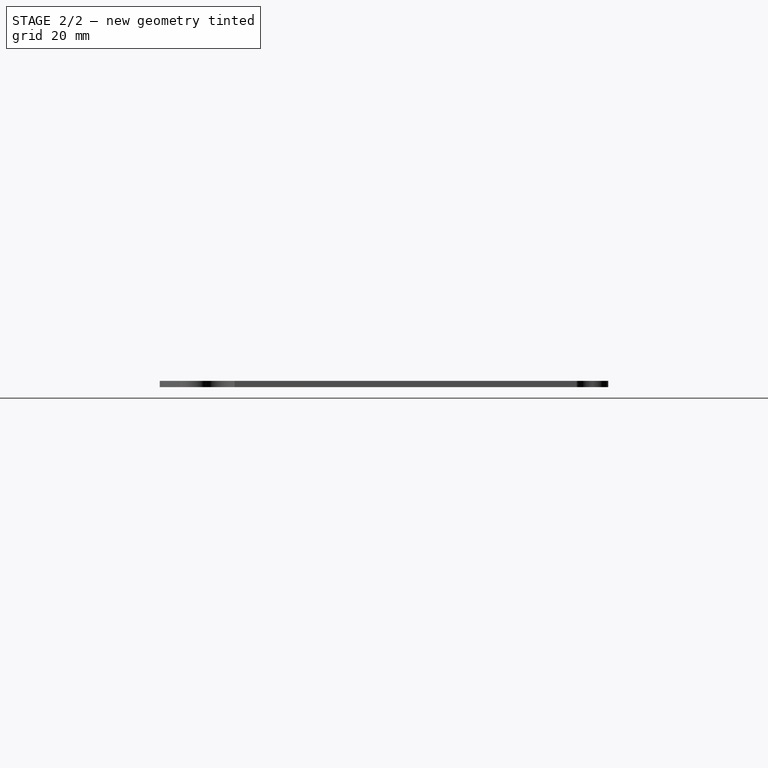
[diagram: stage 2 of 2 — right view after this stage's code; geometry added in this stage tinted green]
FEATURE [PartDesign::Body] Body
  Group = -> [Sketch,Pad]
  Origin = -> Origin
  Placement = pos=(-61.4052,-53.0722,0) rot=(0,0,1;0rad)
  Tip = -> Pad
FEATURE [Sketcher::SketchObject] Sketch003
  FullyConstrained = true
  MapMode = 5
  Support = -> [XY_Plane004]
  sketch-geometry (5):
    g0: Circle CenterX=4 CenterY=4 CenterZ=0 NormalX=0 NormalY=0 NormalZ=1 AngleXU=0 Radius=2.5
    g1: ArcOfCircle CenterX=4 CenterY=4 CenterZ=0 NormalX=0 NormalY=0 NormalZ=1 AngleXU=0 Radius=4 StartAngle=0 EndAngle=3.14159
    g2: LineSegment StartX=0 StartY=0 StartZ=0 EndX=8 EndY=0 EndZ=0
    g3: LineSegment StartX=3.00311e-11 StartY=4 StartZ=0 EndX=0 EndY=0 EndZ=0
    g4: LineSegment StartX=8 StartY=4 StartZ=0 EndX=8 EndY=0 EndZ=0
  constraints (14):
    c: Diameter(g0) = 5
    c: Radius(g1) = 4
    c: DistanceY(g0,g1) = 0
    c: DistanceY(g0,g1) = 0
    c: Coincident(g0,g1)
    c: DistanceY(g2,g2) = 0
    c: DistanceY(g2,g1) = 4
    c: Coincident(g3,g2)
    c: Coincident(g4,g2)
    c: Perpendicular(g2,g3)
    c: Perpendicular(g2,g4)
    c: Coincident(g3,g1)
    c: Coincident(g4,g1)
    c: Coincident(g2,g-1)
FEATURE [PartDesign::Pad] Pad003
  Direction = (0,0,1)
  Length = 1.6
  Length2 = 10
  Profile = -> Sketch003
  ReferenceAxis = -> Sketch003 [N_Axis]
  Type = 0
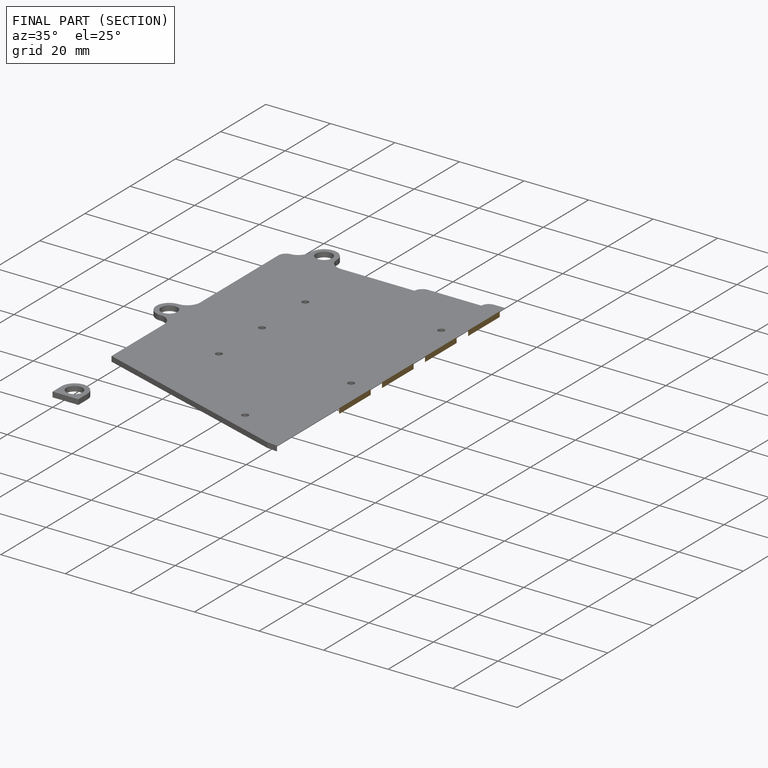
[diagram: finished part — half-section view (interior)]
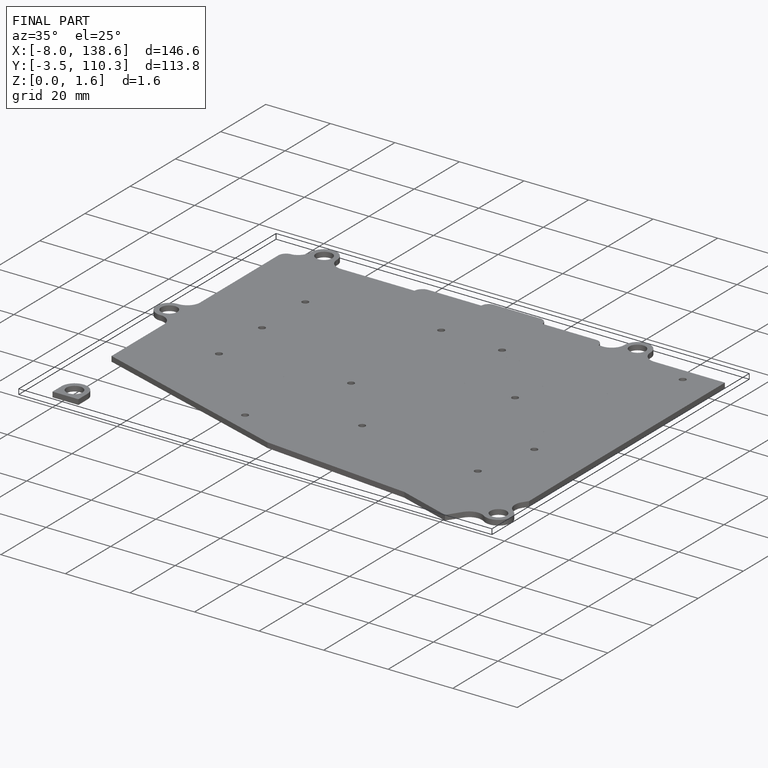
[diagram: finished part — iso view with bounding-box wireframe]
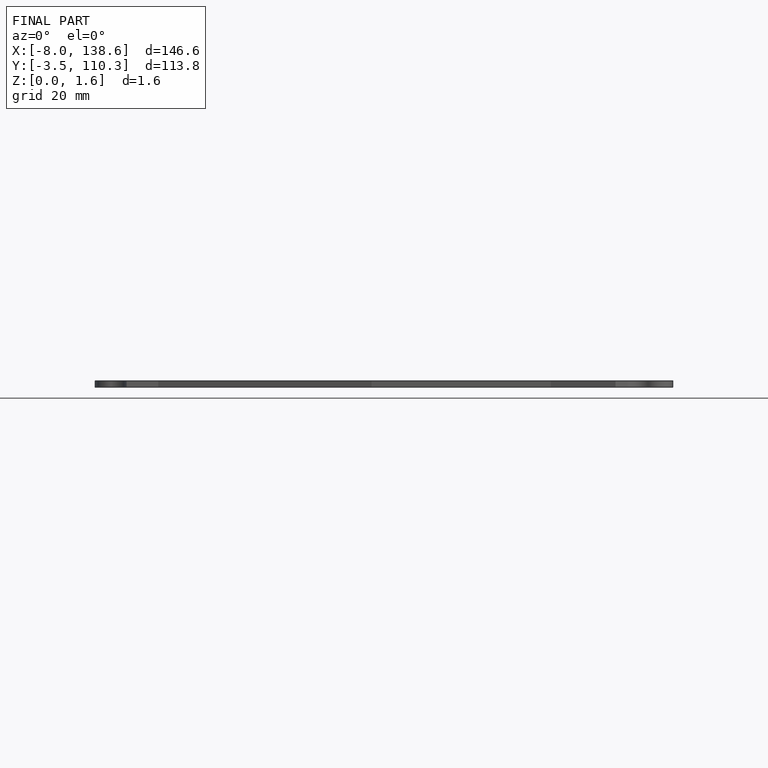
[diagram: finished part — front view with bounding-box wireframe]
